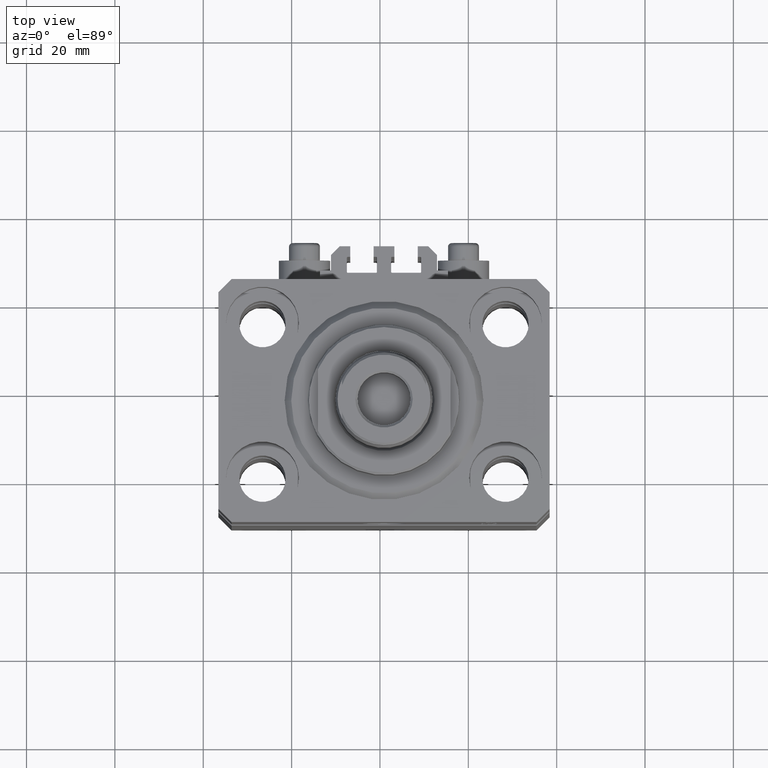
[diagram: clean part render]
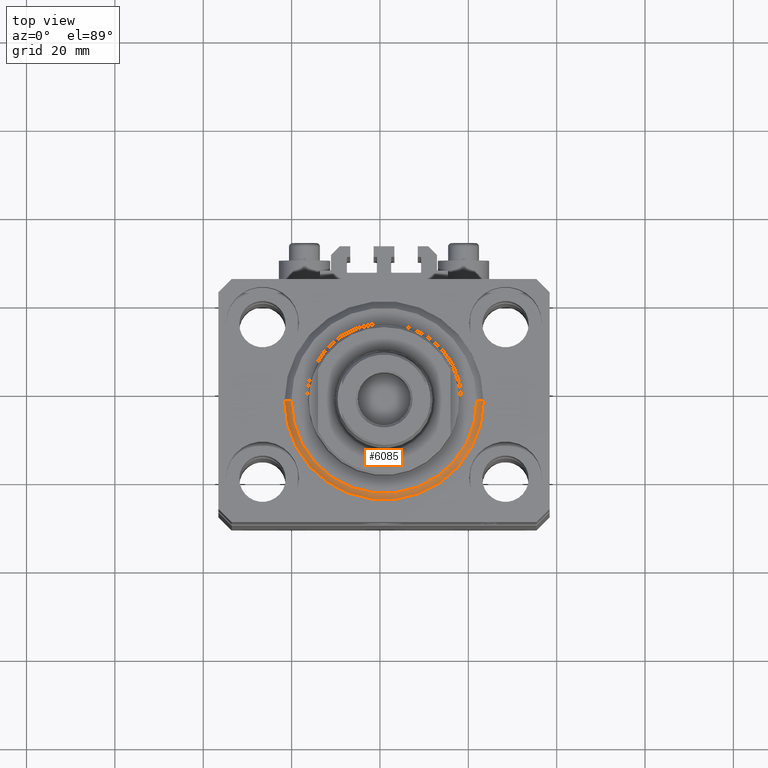
[diagram: same view with one face highlighted and labeled with its STEP entity id]
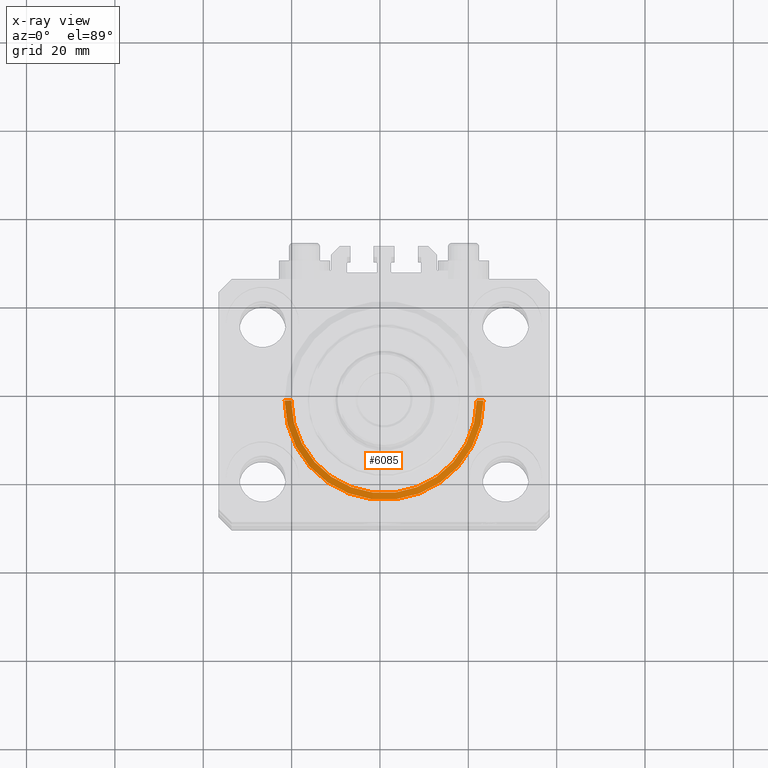
[diagram: x-ray of the same camera — body ghosted, the highlighted face saturated]
A machine part, top view. The second image highlights one B-rep face of the part: STEP entity #6085.
The next image is the same camera in x-ray: the body ghosted, the highlighted face saturated — about 0% of this face is hidden behind the body in this view.
In plain terms, the highlighted conical surface has half-angle 45 deg.
Its self-contained STEP definition (entity closure, byte-faithful):
#651 = EDGE_CURVE ( 'NONE', #37875, #11044, #26220, .T. ) ;
#2927 = CARTESIAN_POINT ( 'NONE',  ( 0.000000000000000000, 0.000000000000000000, 0.000000000000000000 ) ) ;
#3597 = VECTOR ( 'NONE', #12308, 1000.000000000000000 ) ;
#6035 = VERTEX_POINT ( 'NONE', #36482 ) ;
#6085 = ADVANCED_FACE ( 'NONE', ( #9261 ), #42302, .T. ) ;
#7492 = ORIENTED_EDGE ( 'NONE', *, *, #26251, .F. ) ;
#8029 = LINE ( 'NONE', #36907, #25405 ) ;
#8429 = CARTESIAN_POINT ( 'NONE',  ( -22.50000000000000355, 0.000000000000000000, 1.500000000000004885 ) ) ;
#9261 = FACE_OUTER_BOUND ( 'NONE', #29090, .T. ) ;
#11044 = VERTEX_POINT ( 'NONE', #16142 ) ;
#11835 = LINE ( 'NONE', #36928, #3597 ) ;
#11863 = CARTESIAN_POINT ( 'NONE',  ( 0.000000000000000000, 0.000000000000000000, 1.500000000000004885 ) ) ;
#12308 = DIRECTION ( 'NONE',  ( 0.7071067811865491270, 0.000000000000000000, 0.7071067811865459074 ) ) ;
#12879 = ORIENTED_EDGE ( 'NONE', *, *, #651, .F. ) ;
#15809 = CARTESIAN_POINT ( 'NONE',  ( 0.000000000000000000, 0.000000000000000000, 1.500000000000004885 ) ) ;
#16142 = CARTESIAN_POINT ( 'NONE',  ( -20.99999999999998934, 2.663606788145492628E-15, 0.000000000000000000 ) ) ;
#19822 = ORIENTED_EDGE ( 'NONE', *, *, #46553, .F. ) ;
#23255 = AXIS2_PLACEMENT_3D ( 'NONE', #15809, #23371, #41150 ) ;
#23371 = DIRECTION ( 'NONE',  ( -0.000000000000000000, -0.000000000000000000, 1.000000000000000000 ) ) ;
#23431 = DIRECTION ( 'NONE',  ( -0.000000000000000000, -0.000000000000000000, 1.000000000000000000 ) ) ;
#23775 = DIRECTION ( 'NONE',  ( 1.000000000000000000, 0.000000000000000000, 0.000000000000000000 ) ) ;
#25405 = VECTOR ( 'NONE', #26936, 1000.000000000000000 ) ;
#26220 = CIRCLE ( 'NONE', #35299, 20.99999999999998934 ) ;
#26251 = EDGE_CURVE ( 'NONE', #11044, #33654, #8029, .T. ) ;
#26936 = DIRECTION ( 'NONE',  ( -0.7071067811865491270, 8.659560562354953812E-17, 0.7071067811865459074 ) ) ;
#29090 = EDGE_LOOP ( 'NONE', ( #7492, #12879, #43231, #19822 ) ) ;
#33654 = VERTEX_POINT ( 'NONE', #8429 ) ;
#34452 = DIRECTION ( 'NONE',  ( -0.000000000000000000, -0.000000000000000000, -1.000000000000000000 ) ) ;
#35299 = AXIS2_PLACEMENT_3D ( 'NONE', #2927, #34452, #23775 ) ;
#35776 = CARTESIAN_POINT ( 'NONE',  ( 20.99999999999998934, 0.000000000000000000, 0.000000000000000000 ) ) ;
#36109 = CIRCLE ( 'NONE', #23255, 22.50000000000000355 ) ;
#36482 = CARTESIAN_POINT ( 'NONE',  ( 22.50000000000000355, 2.755455298081545172E-15, 1.500000000000004885 ) ) ;
#36907 = CARTESIAN_POINT ( 'NONE',  ( -22.50000000000000355, 2.755455298081545172E-15, 1.500000000000004885 ) ) ;
#36928 = CARTESIAN_POINT ( 'NONE',  ( 22.50000000000000355, 0.000000000000000000, 1.500000000000004885 ) ) ;
#37875 = VERTEX_POINT ( 'NONE', #35776 ) ;
#40738 = DIRECTION ( 'NONE',  ( 1.000000000000000000, 0.000000000000000000, 0.000000000000000000 ) ) ;
#41150 = DIRECTION ( 'NONE',  ( 1.000000000000000000, 0.000000000000000000, 0.000000000000000000 ) ) ;
#41616 = EDGE_CURVE ( 'NONE', #37875, #6035, #11835, .T. ) ;
#42302 = CONICAL_SURFACE ( 'NONE', #45320, 22.50000000000000355, 0.7853981633974506105 ) ;
#43231 = ORIENTED_EDGE ( 'NONE', *, *, #41616, .T. ) ;
#45320 = AXIS2_PLACEMENT_3D ( 'NONE', #11863, #23431, #40738 ) ;
#46553 = EDGE_CURVE ( 'NONE', #33654, #6035, #36109, .T. ) ;